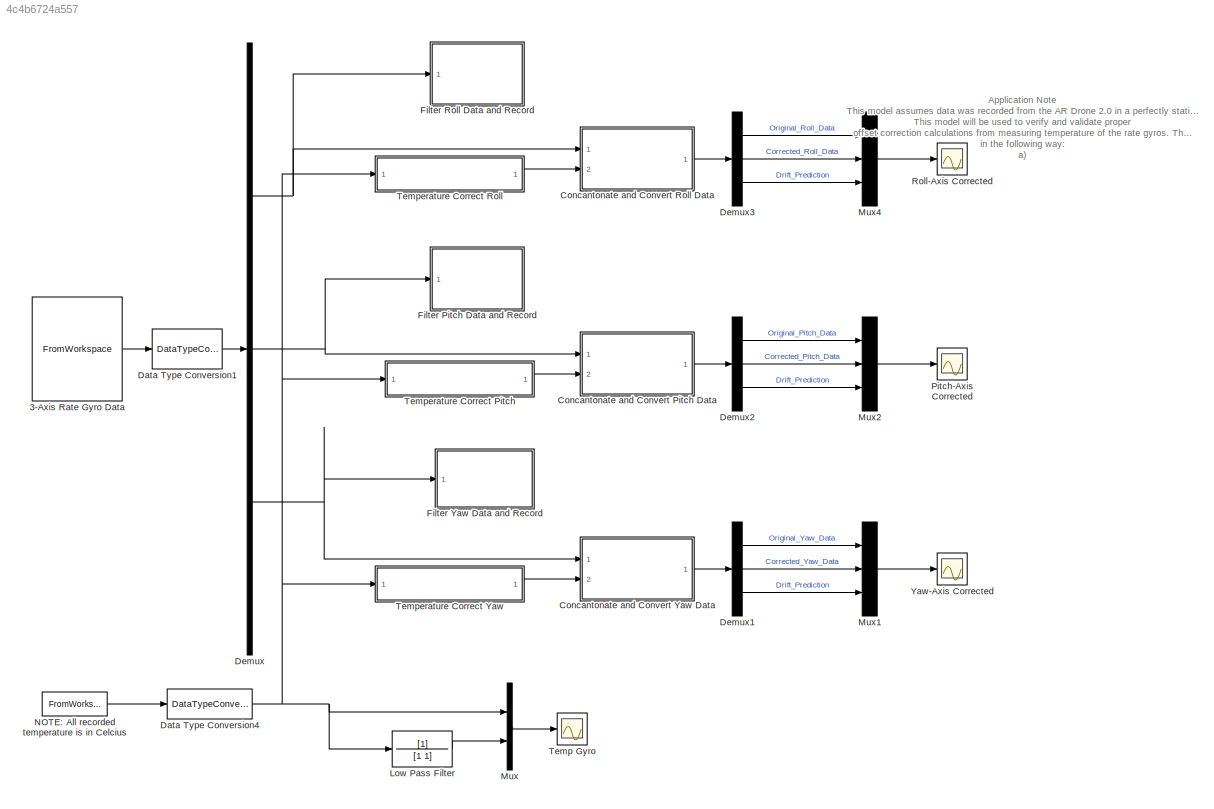
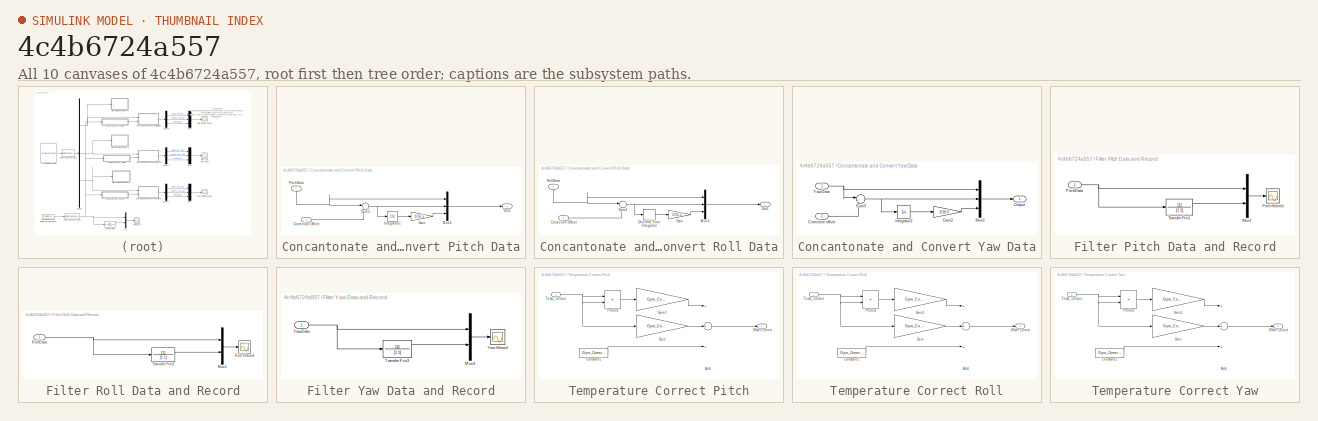
[diagram: thumbnail index - all 10 canvases of the model, root first then tree order]
MODEL slx_4c4b6724a557
KIND model
CONFIG AbsTol = auto
CONFIG FixedStep = 1/400
CONFIG MaxStep = auto
CONFIG MinStep = auto
CONFIG RelTol = 1e-3
CONFIG SampleTimeConstraint = Unconstrained
CONFIG Solver = ode3
CONFIG SolverMode = Auto
CONFIG SolverName = ode3
CONFIG StartTime = 0.0
CONFIG StopTime = Gyro.time(end)
BLOCK [FromWorkspace] 3-Axis Rate Gyro Data
  VariableName = Gyro
  ZeroCross = on
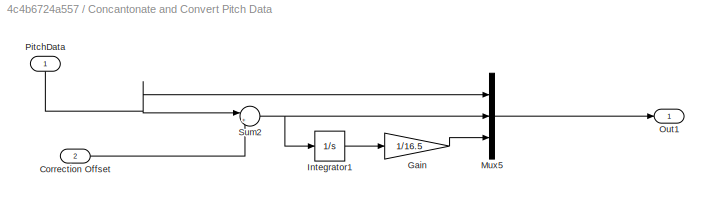
BLOCK [SubSystem] Concantonate and Convert Pitch Data
  Ports = [2, 1]
  RequestExecContextInheritance = off
BLOCK [Inport] Concantonate and Convert Pitch Data/Correction Offset
  IconDisplay = Port number
  Port = 2
BLOCK [Gain] Concantonate and Convert Pitch Data/Gain
  Gain = 1/16.5
  OutDataTypeStr = Inherit: Inherit via internal rule
  ParamDataTypeStr = Inherit: Inherit via internal rule
  SaturateOnIntegerOverflow = off
BLOCK [Integrator] Concantonate and Convert Pitch Data/Integrator1
  Ports = [1, 1]
BLOCK [Mux] Concantonate and Convert Pitch Data/Mux5
  DisplayOption = bar
  Inputs = 3
  Ports = [3, 1]
BLOCK [Outport] Concantonate and Convert Pitch Data/Out1
  IconDisplay = Port number
BLOCK [Inport] Concantonate and Convert Pitch Data/PitchData
  IconDisplay = Port number
BLOCK [Sum] Concantonate and Convert Pitch Data/Sum2
  IconShape = round
  InputSameDT = off
  Inputs = |+-
  OutDataTypeStr = Inherit: Inherit via internal rule
  Ports = [2, 1]
  SaturateOnIntegerOverflow = off
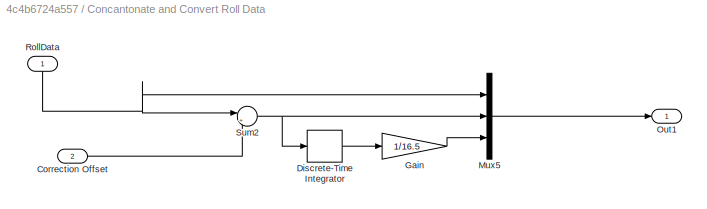
BLOCK [SubSystem] Concantonate and Convert Roll Data
  Ports = [2, 1]
  RequestExecContextInheritance = off
BLOCK [Inport] Concantonate and Convert Roll Data/Correction Offset
  IconDisplay = Port number
  Port = 2
BLOCK [DiscreteIntegrator] Concantonate and Convert Roll Data/Discrete-Time Integrator
  Ports = [1, 1]
  SampleTime = 1/400
BLOCK [Gain] Concantonate and Convert Roll Data/Gain
  Gain = 1/16.5
  OutDataTypeStr = Inherit: Inherit via internal rule
  ParamDataTypeStr = Inherit: Inherit via internal rule
  SaturateOnIntegerOverflow = off
BLOCK [Mux] Concantonate and Convert Roll Data/Mux5
  DisplayOption = bar
  Inputs = 3
  Ports = [3, 1]
BLOCK [Outport] Concantonate and Convert Roll Data/Out1
  IconDisplay = Port number
BLOCK [Inport] Concantonate and Convert Roll Data/RollData
  IconDisplay = Port number
BLOCK [Sum] Concantonate and Convert Roll Data/Sum2
  IconShape = round
  InputSameDT = off
  Inputs = |+-
  OutDataTypeStr = Inherit: Inherit via internal rule
  Ports = [2, 1]
  SaturateOnIntegerOverflow = off
BLOCK [SubSystem] Concantonate and Convert Yaw Data
  Ports = [2, 1]
  RequestExecContextInheritance = off
BLOCK [Inport] Concantonate and Convert Yaw Data/Correction offset
  IconDisplay = Port number
  Port = 2
BLOCK [Gain] Concantonate and Convert Yaw Data/Gain2
  Gain = 1/16.5
  OutDataTypeStr = Inherit: Inherit via internal rule
  ParamDataTypeStr = Inherit: Inherit via internal rule
  SaturateOnIntegerOverflow = off
BLOCK [Integrator] Concantonate and Convert Yaw Data/Integrator2
  Ports = [1, 1]
BLOCK [Mux] Concantonate and Convert Yaw Data/Mux6
  DisplayOption = bar
  Inputs = 3
  Ports = [3, 1]
BLOCK [Outport] Concantonate and Convert Yaw Data/Output
  IconDisplay = Port number
BLOCK [Sum] Concantonate and Convert Yaw Data/Sum3
  IconShape = round
  InputSameDT = off
  Inputs = |+-
  OutDataTypeStr = Inherit: Inherit via internal rule
  Ports = [2, 1]
  SaturateOnIntegerOverflow = off
BLOCK [Inport] Concantonate and Convert Yaw Data/YawData
  IconDisplay = Port number
BLOCK [DataTypeConversion] Data Type Conversion1
  RndMeth = Floor
  SaturateOnIntegerOverflow = off
BLOCK [DataTypeConversion] Data Type Conversion4
  RndMeth = Floor
  SaturateOnIntegerOverflow = off
BLOCK [Demux] Demux
  DisplayOption = bar
  Outputs = 3
  Ports = [1, 3]
BLOCK [Demux] Demux1
  DisplayOption = bar
  Outputs = 3
  Ports = [1, 3]
BLOCK [Demux] Demux2
  DisplayOption = bar
  Outputs = 3
  Ports = [1, 3]
BLOCK [Demux] Demux3
  DisplayOption = bar
  Outputs = 3
  Ports = [1, 3]
BLOCK [SubSystem] Filter Pitch Data and Record
  Ports = [1]
  RequestExecContextInheritance = off
BLOCK [Mux] Filter Pitch Data and Record/Mux1
  DisplayOption = bar
  Inputs = 2
  Ports = [2, 1]
BLOCK [Scope] Filter Pitch Data and Record/Pitch filtered
  DataFormat = StructureWithTime
  Floating = off
  LimitDataPoints = off
  NumInputPorts = 1
  Ports = [1]
  SampleTime = 0
  SaveName = Pitch_Gyro_filtered
  SaveToWorkspace = on
  ZoomMode = yonly
BLOCK [Inport] Filter Pitch Data and Record/PitchData
  IconDisplay = Port number
BLOCK [TransferFcn] Filter Pitch Data and Record/Transfer Fcn1
  Denominator = [1 1]
BLOCK [SubSystem] Filter Roll Data and Record
  Ports = [1]
  RequestExecContextInheritance = off
BLOCK [Mux] Filter Roll Data and Record/Mux2
  DisplayOption = bar
  Inputs = 2
  Ports = [2, 1]
BLOCK [Scope] Filter Roll Data and Record/Roll filtered
  DataFormat = StructureWithTime
  Floating = off
  LimitDataPoints = off
  NumInputPorts = 1
  Ports = [1]
  SampleTime = 0
  SaveName = Roll_Gyro_filtered
  SaveToWorkspace = on
  ZoomMode = yonly
BLOCK [Inport] Filter Roll Data and Record/RollData
  IconDisplay = Port number
BLOCK [TransferFcn] Filter Roll Data and Record/Transfer Fcn2
  Denominator = [1 1]
BLOCK [SubSystem] Filter Yaw Data and Record
  Ports = [1]
  RequestExecContextInheritance = off
BLOCK [Mux] Filter Yaw Data and Record/Mux4
  DisplayOption = bar
  Inputs = 2
  Ports = [2, 1]
BLOCK [TransferFcn] Filter Yaw Data and Record/Transfer Fcn3
  Denominator = [1 1]
BLOCK [Scope] Filter Yaw Data and Record/Yaw filtered
  DataFormat = StructureWithTime
  Floating = off
  LimitDataPoints = off
  NumInputPorts = 1
  Ports = [1]
  SampleTime = 0
  SaveName = Yaw_Gyro_filtered
  SaveToWorkspace = on
BLOCK [Inport] Filter Yaw Data and Record/YawData
  IconDisplay = Port number
BLOCK [TransferFcn] Low Pass Filter
  Denominator = [1 1]
BLOCK [Mux] Mux
  DisplayOption = bar
  Inputs = 2
  Ports = [2, 1]
BLOCK [Mux] Mux1
  DisplayOption = bar
  Inputs = 3
  Ports = [3, 1]
BLOCK [Mux] Mux2
  DisplayOption = bar
  Inputs = 3
  Ports = [3, 1]
BLOCK [Mux] Mux4
  DisplayOption = bar
  Inputs = 3
  Ports = [3, 1]
BLOCK [FromWorkspace] NOTE: All recorded temperature is in Celcius
  VariableName = TempMeasure
  ZeroCross = on
BLOCK [Scope] Pitch-Axis Corrected
  DataFormat = StructureWithTime
  Floating = off
  LimitDataPoints = off
  NumInputPorts = 1
  Ports = [1]
  SampleTime = 0
  SaveName = Pitch_Corrected_Uncorrected
  ShowLegends = on
  YMax = 37.5
BLOCK [Scope] Roll-Axis Corrected
  DataFormat = StructureWithTime
  Floating = off
  LimitDataPoints = off
  NumInputPorts = 1
  Ports = [1]
  SampleTime = 0
  SaveName = ForDocumentation
  ShowLegends = on
  TimeRange = 571.1351351351351
  YMax = 120
  YMin = -10
  ZoomMode = yonly
BLOCK [Scope] Temp Gyro
  DataFormat = StructureWithTime
  Floating = off
  LimitDataPoints = off
  NumInputPorts = 1
  Ports = [1]
  SampleTime = 0
  SaveName = FilteredTemp
  SaveToWorkspace = on
  YMax = 48.75
  YMin = 46
  ZoomMode = yonly
BLOCK [SubSystem] Temperature Correct Pitch
  Ports = [1, 1]
  RequestExecContextInheritance = off
BLOCK [Sum] Temperature Correct Pitch/Add
  InputSameDT = off
  Inputs = +++
  OutDataTypeStr = Inherit: Inherit via internal rule
  Ports = [3, 1]
  SaturateOnIntegerOverflow = off
BLOCK [Constant] Temperature Correct Pitch/Constant1
  AttributesFormatString = %<Value>
  Value = Gyro_Correction_Pitch.Offset
BLOCK [Gain] Temperature Correct Pitch/Gain
  AttributesFormatString = %<Gain>
  Gain = Gyro_Correction_Pitch.P2
  OutDataTypeStr = Inherit: Inherit via internal rule
  ParamDataTypeStr = Inherit: Inherit via internal rule
  SaturateOnIntegerOverflow = off
BLOCK [Gain] Temperature Correct Pitch/Gain1
  AttributesFormatString = %<Gain>
  Gain = Gyro_Correction_Pitch.P1
  OutDataTypeStr = Inherit: Inherit via internal rule
  ParamDataTypeStr = Inherit: Inherit via internal rule
  SaturateOnIntegerOverflow = off
BLOCK [Outport] Temperature Correct Pitch/Offset Correct
  IconDisplay = Port number
BLOCK [Product] Temperature Correct Pitch/Product
  InputSameDT = off
  OutDataTypeStr = Inherit: Inherit via internal rule
  Ports = [2, 1]
  RndMeth = Floor
  SaturateOnIntegerOverflow = off
BLOCK [Inport] Temperature Correct Pitch/Temp_Celcius
  IconDisplay = Port number
BLOCK [SubSystem] Temperature Correct Roll
  Ports = [1, 1]
  RequestExecContextInheritance = off
BLOCK [Sum] Temperature Correct Roll/Add
  InputSameDT = off
  Inputs = +++
  OutDataTypeStr = Inherit: Inherit via internal rule
  Ports = [3, 1]
  SaturateOnIntegerOverflow = off
BLOCK [Constant] Temperature Correct Roll/Constant1
  AttributesFormatString = %<Value>
  Value = Gyro_Correction_Roll.Offset
BLOCK [Gain] Temperature Correct Roll/Gain
  AttributesFormatString = %<Gain>
  Gain = Gyro_Correction_Roll.P2
  OutDataTypeStr = Inherit: Inherit via internal rule
  ParamDataTypeStr = Inherit: Inherit via internal rule
  SaturateOnIntegerOverflow = off
BLOCK [Gain] Temperature Correct Roll/Gain1
  AttributesFormatString = %<Gain>
  Gain = Gyro_Correction_Roll.P1
  OutDataTypeStr = Inherit: Inherit via internal rule
  ParamDataTypeStr = Inherit: Inherit via internal rule
  SaturateOnIntegerOverflow = off
BLOCK [Outport] Temperature Correct Roll/Offset Correct
  IconDisplay = Port number
BLOCK [Product] Temperature Correct Roll/Product
  InputSameDT = off
  OutDataTypeStr = Inherit: Inherit via internal rule
  Ports = [2, 1]
  RndMeth = Floor
  SaturateOnIntegerOverflow = off
BLOCK [Inport] Temperature Correct Roll/Temp_Celcius
  IconDisplay = Port number
BLOCK [SubSystem] Temperature Correct Yaw
  Ports = [1, 1]
  RequestExecContextInheritance = off
BLOCK [Sum] Temperature Correct Yaw/Add
  InputSameDT = off
  Inputs = +++
  OutDataTypeStr = Inherit: Inherit via internal rule
  Ports = [3, 1]
  SaturateOnIntegerOverflow = off
BLOCK [Constant] Temperature Correct Yaw/Constant1
  AttributesFormatString = %<Value>
  Value = Gyro_Correction_Yaw.Offset
BLOCK [Gain] Temperature Correct Yaw/Gain
  AttributesFormatString = %<Gain>
  Gain = Gyro_Correction_Yaw.P2
  OutDataTypeStr = Inherit: Inherit via internal rule
  ParamDataTypeStr = Inherit: Inherit via internal rule
  SaturateOnIntegerOverflow = off
BLOCK [Gain] Temperature Correct Yaw/Gain1
  AttributesFormatString = %<Gain>
  Gain = Gyro_Correction_Yaw.P1
  OutDataTypeStr = Inherit: Inherit via internal rule
  ParamDataTypeStr = Inherit: Inherit via internal rule
  SaturateOnIntegerOverflow = off
BLOCK [Outport] Temperature Correct Yaw/Offset Correct
  IconDisplay = Port number
BLOCK [Product] Temperature Correct Yaw/Product
  InputSameDT = off
  OutDataTypeStr = Inherit: Inherit via internal rule
  Ports = [2, 1]
  RndMeth = Floor
  SaturateOnIntegerOverflow = off
BLOCK [Inport] Temperature Correct Yaw/Temp_Celcius
  IconDisplay = Port number
BLOCK [Scope] Yaw-Axis Corrected
  DataFormat = StructureWithTime
  Floating = off
  LimitDataPoints = off
  NumInputPorts = 1
  Ports = [1]
  SampleTime = 0
  SaveName = Roll_Corrected_Uncorrected2
  ShowLegends = on
  YMax = 4
  YMin = -7
  ZoomMode = yonly
ANNOTATION (root): Application Note This model assumes data was recorded from the AR Drone 2.0 in a perfectly stationary position without disturbance. Use the TempMeasure.slx model to record data in external mode to the MATLAB workspace. Record data for about 1000 seconds to get a good temperature profile, considering the temperature rises to a certain threshold after bootup from room temperature This model will be ...<+1668ch>
LINE 3-Axis Rate Gyro Data:1 -> Data Type Conversion1:1
LINE Concantonate and Convert Pitch Data/Correction Offset:1 -> Concantonate and Convert Pitch Data/Sum2:2
LINE Concantonate and Convert Pitch Data/Gain:1 -> Concantonate and Convert Pitch Data/Mux5:3
LINE Concantonate and Convert Pitch Data/Integrator1:1 -> Concantonate and Convert Pitch Data/Gain:1
LINE Concantonate and Convert Pitch Data/Mux5:1 -> Concantonate and Convert Pitch Data/Out1:1
NET Concantonate and Convert Pitch Data/PitchData:1 -> Concantonate and Convert Pitch Data/Mux5:1, Concantonate and Convert Pitch Data/Sum2:1
NET Concantonate and Convert Pitch Data/Sum2:1 -> Concantonate and Convert Pitch Data/Integrator1:1, Concantonate and Convert Pitch Data/Mux5:2
LINE Concantonate and Convert Pitch Data:1 -> Demux2:1
LINE Concantonate and Convert Roll Data/Correction Offset:1 -> Concantonate and Convert Roll Data/Sum2:2
LINE Concantonate and Convert Roll Data/Discrete-Time Integrator:1 -> Concantonate and Convert Roll Data/Gain:1
LINE Concantonate and Convert Roll Data/Gain:1 -> Concantonate and Convert Roll Data/Mux5:3
LINE Concantonate and Convert Roll Data/Mux5:1 -> Concantonate and Convert Roll Data/Out1:1
NET Concantonate and Convert Roll Data/RollData:1 -> Concantonate and Convert Roll Data/Mux5:1, Concantonate and Convert Roll Data/Sum2:1
NET Concantonate and Convert Roll Data/Sum2:1 -> Concantonate and Convert Roll Data/Discrete-Time Integrator:1, Concantonate and Convert Roll Data/Mux5:2
LINE Concantonate and Convert Roll Data:1 -> Demux3:1
LINE Concantonate and Convert Yaw Data/Correction offset:1 -> Concantonate and Convert Yaw Data/Sum3:2
LINE Concantonate and Convert Yaw Data/Gain2:1 -> Concantonate and Convert Yaw Data/Mux6:3
LINE Concantonate and Convert Yaw Data/Integrator2:1 -> Concantonate and Convert Yaw Data/Gain2:1
LINE Concantonate and Convert Yaw Data/Mux6:1 -> Concantonate and Convert Yaw Data/Output:1
NET Concantonate and Convert Yaw Data/Sum3:1 -> Concantonate and Convert Yaw Data/Integrator2:1, Concantonate and Convert Yaw Data/Mux6:2
NET Concantonate and Convert Yaw Data/YawData:1 -> Concantonate and Convert Yaw Data/Mux6:1, Concantonate and Convert Yaw Data/Sum3:1
LINE Concantonate and Convert Yaw Data:1 -> Demux1:1
LINE Data Type Conversion1:1 -> Demux:1
NET Data Type Conversion4:1 -> Low Pass Filter:1, Mux:1, Temperature Correct Pitch:1, Temperature Correct Roll:1, Temperature Correct Yaw:1
LINE Demux1:1 -> Mux1:1
LINE Demux1:2 -> Mux1:2
LINE Demux1:3 -> Mux1:3
LINE Demux2:1 -> Mux2:1
LINE Demux2:2 -> Mux2:2
LINE Demux2:3 -> Mux2:3
LINE Demux3:1 -> Mux4:1
LINE Demux3:2 -> Mux4:2
LINE Demux3:3 -> Mux4:3
NET Demux:1 -> Concantonate and Convert Roll Data:1, Filter Roll Data and Record:1
NET Demux:2 -> Concantonate and Convert Pitch Data:1, Filter Pitch Data and Record:1
NET Demux:3 -> Concantonate and Convert Yaw Data:1, Filter Yaw Data and Record:1
LINE Filter Pitch Data and Record/Mux1:1 -> Filter Pitch Data and Record/Pitch filtered:1
NET Filter Pitch Data and Record/PitchData:1 -> Filter Pitch Data and Record/Mux1:1, Filter Pitch Data and Record/Transfer Fcn1:1
LINE Filter Pitch Data and Record/Transfer Fcn1:1 -> Filter Pitch Data and Record/Mux1:2
LINE Filter Roll Data and Record/Mux2:1 -> Filter Roll Data and Record/Roll filtered:1
NET Filter Roll Data and Record/RollData:1 -> Filter Roll Data and Record/Mux2:1, Filter Roll Data and Record/Transfer Fcn2:1
LINE Filter Roll Data and Record/Transfer Fcn2:1 -> Filter Roll Data and Record/Mux2:2
LINE Filter Yaw Data and Record/Mux4:1 -> Filter Yaw Data and Record/Yaw filtered:1
LINE Filter Yaw Data and Record/Transfer Fcn3:1 -> Filter Yaw Data and Record/Mux4:2
NET Filter Yaw Data and Record/YawData:1 -> Filter Yaw Data and Record/Mux4:1, Filter Yaw Data and Record/Transfer Fcn3:1
LINE Low Pass Filter:1 -> Mux:2
LINE Mux1:1 -> Yaw-Axis Corrected:1
LINE Mux2:1 -> Pitch-Axis Corrected:1
LINE Mux4:1 -> Roll-Axis Corrected:1
LINE Mux:1 -> Temp Gyro:1
LINE NOTE: All recorded temperature is in Celcius:1 -> Data Type Conversion4:1
LINE Temperature Correct Pitch/Add:1 -> Temperature Correct Pitch/Offset Correct:1
LINE Temperature Correct Pitch/Constant1:1 -> Temperature Correct Pitch/Add:3
LINE Temperature Correct Pitch/Gain1:1 -> Temperature Correct Pitch/Add:1
LINE Temperature Correct Pitch/Gain:1 -> Temperature Correct Pitch/Add:2
LINE Temperature Correct Pitch/Product:1 -> Temperature Correct Pitch/Gain1:1
NET Temperature Correct Pitch/Temp_Celcius:1 -> Temperature Correct Pitch/Gain:1, Temperature Correct Pitch/Product:1, Temperature Correct Pitch/Product:2
LINE Temperature Correct Pitch:1 -> Concantonate and Convert Pitch Data:2
LINE Temperature Correct Roll/Add:1 -> Temperature Correct Roll/Offset Correct:1
LINE Temperature Correct Roll/Constant1:1 -> Temperature Correct Roll/Add:3
LINE Temperature Correct Roll/Gain1:1 -> Temperature Correct Roll/Add:1
LINE Temperature Correct Roll/Gain:1 -> Temperature Correct Roll/Add:2
LINE Temperature Correct Roll/Product:1 -> Temperature Correct Roll/Gain1:1
NET Temperature Correct Roll/Temp_Celcius:1 -> Temperature Correct Roll/Gain:1, Temperature Correct Roll/Product:1, Temperature Correct Roll/Product:2
LINE Temperature Correct Roll:1 -> Concantonate and Convert Roll Data:2
LINE Temperature Correct Yaw/Add:1 -> Temperature Correct Yaw/Offset Correct:1
LINE Temperature Correct Yaw/Constant1:1 -> Temperature Correct Yaw/Add:3
LINE Temperature Correct Yaw/Gain1:1 -> Temperature Correct Yaw/Add:1
LINE Temperature Correct Yaw/Gain:1 -> Temperature Correct Yaw/Add:2
LINE Temperature Correct Yaw/Product:1 -> Temperature Correct Yaw/Gain1:1
NET Temperature Correct Yaw/Temp_Celcius:1 -> Temperature Correct Yaw/Gain:1, Temperature Correct Yaw/Product:1, Temperature Correct Yaw/Product:2
LINE Temperature Correct Yaw:1 -> Concantonate and Convert Yaw Data:2
note: NET lines group one-source signal fan-out (src -> all destinations, sorted); 1:1 wires keep LINE
